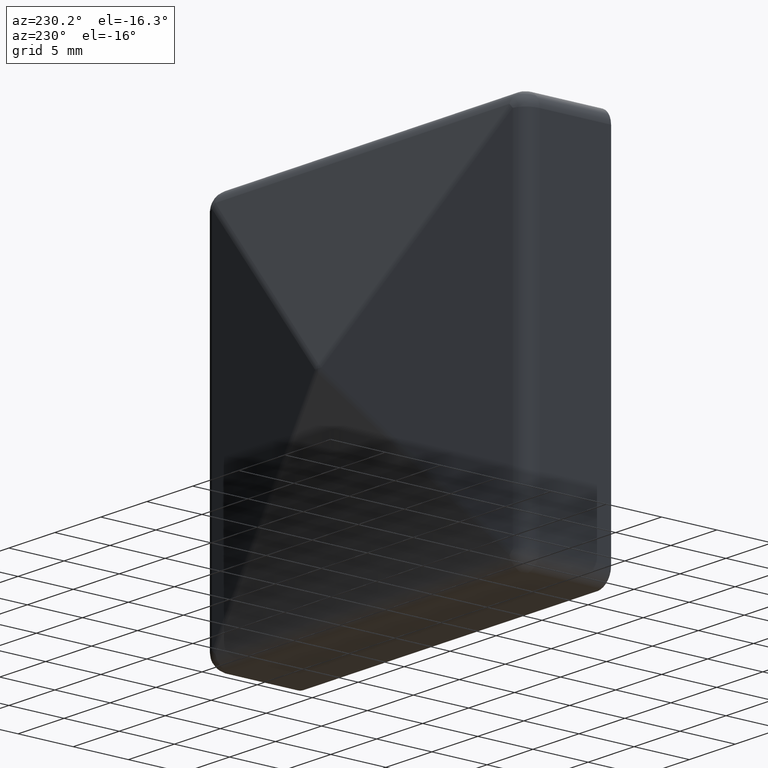
[diagram: clean part render]
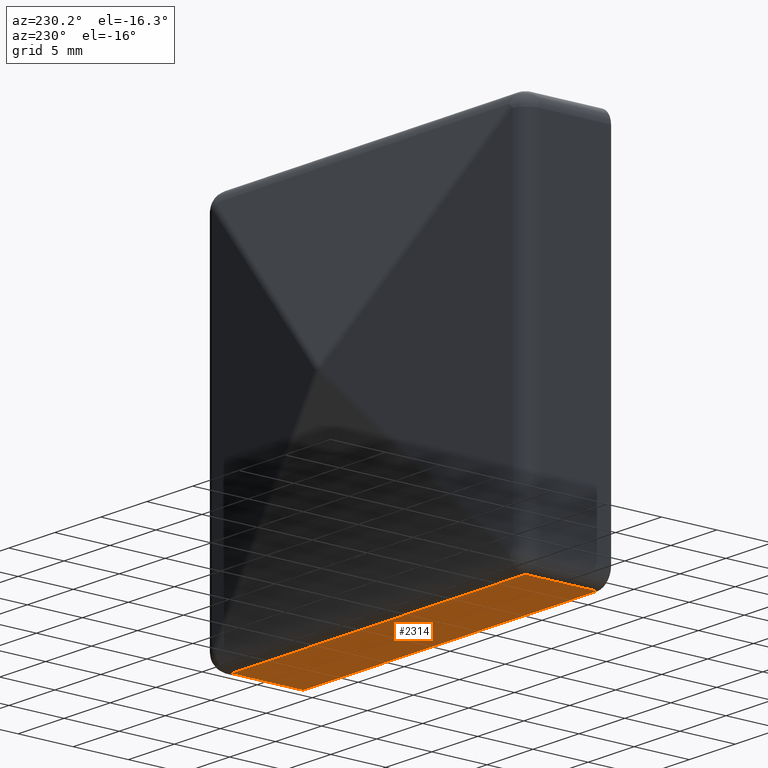
[diagram: same view with one face highlighted and labeled with its STEP entity id]
A machine part, auxiliary view. The second image highlights one B-rep face of the part: STEP entity #2314.
In plain terms, the highlighted planar face has unit normal (0, 0, 1).
Its self-contained STEP definition (entity closure, byte-faithful):
#1 = VECTOR ( 'NONE', #2024, 1000.000000000000000 ) ;
#255 = ORIENTED_EDGE ( 'NONE', *, *, #9514, .T. ) ;
#292 = VECTOR ( 'NONE', #10796, 1000.000000000000000 ) ;
#748 = ORIENTED_EDGE ( 'NONE', *, *, #3244, .F. ) ;
#780 = CARTESIAN_POINT ( 'NONE',  ( -16.00000000000000000, 12.00000000000000000, -17.50000000000001400 ) ) ;
#1197 = LINE ( 'NONE', #16167, #1 ) ;
#1557 = DIRECTION ( 'NONE',  ( 0.0000000000000000000, -1.000000000000000000, 0.0000000000000000000 ) ) ;
#2024 = DIRECTION ( 'NONE',  ( -1.000000000000000000, -0.0000000000000000000, -0.0000000000000000000 ) ) ;
#2247 = CARTESIAN_POINT ( 'NONE',  ( 17.49999999999996100, 6.500000000000000000, -17.49999999999996400 ) ) ;
#2307 = LINE ( 'NONE', #780, #292 ) ;
#2314 = ADVANCED_FACE ( 'NONE', ( #3770 ), #10582, .F. ) ;
#2551 = VERTEX_POINT ( 'NONE', #14739 ) ;
#2793 = CARTESIAN_POINT ( 'NONE',  ( 15.99999999999995900, 12.00000000000000000, -17.50000000000001400 ) ) ;
#3244 = EDGE_CURVE ( 'NONE', #10932, #8326, #8030, .T. ) ;
#3325 = CARTESIAN_POINT ( 'NONE',  ( -16.00000000000000000, 6.500000000000000000, -17.49999999999995700 ) ) ;
#3770 = FACE_OUTER_BOUND ( 'NONE', #16560, .T. ) ;
#5052 = ORIENTED_EDGE ( 'NONE', *, *, #16467, .T. ) ;
#5078 = CARTESIAN_POINT ( 'NONE',  ( -16.00000000000000000, 0.0000000000000000000, -17.50000000000001400 ) ) ;
#6655 = DIRECTION ( 'NONE',  ( 1.000000000000000000, 0.0000000000000000000, -0.0000000000000000000 ) ) ;
#7211 = VECTOR ( 'NONE', #16215, 1000.000000000000000 ) ;
#8030 = LINE ( 'NONE', #2247, #7211 ) ;
#8326 = VERTEX_POINT ( 'NONE', #3325 ) ;
#9310 = EDGE_CURVE ( 'NONE', #10932, #2551, #14337, .T. ) ;
#9347 = VERTEX_POINT ( 'NONE', #5078 ) ;
#9514 = EDGE_CURVE ( 'NONE', #9347, #8326, #2307, .T. ) ;
#10416 = DIRECTION ( 'NONE',  ( 0.0000000000000000000, 0.0000000000000000000, 1.000000000000000000 ) ) ;
#10509 = VECTOR ( 'NONE', #1557, 1000.000000000000000 ) ;
#10537 = AXIS2_PLACEMENT_3D ( 'NONE', #13037, #10416, #6655 ) ;
#10582 = PLANE ( 'NONE',  #10537 ) ;
#10796 = DIRECTION ( 'NONE',  ( -0.0000000000000000000, 1.000000000000000000, -0.0000000000000000000 ) ) ;
#10932 = VERTEX_POINT ( 'NONE', #13254 ) ;
#13037 = CARTESIAN_POINT ( 'NONE',  ( -17.50000000000000000, 12.00000000000000000, -17.50000000000001400 ) ) ;
#13254 = CARTESIAN_POINT ( 'NONE',  ( 15.99999999999995900, 6.500000000000000000, -17.49999999999996400 ) ) ;
#13343 = ORIENTED_EDGE ( 'NONE', *, *, #9310, .T. ) ;
#14337 = LINE ( 'NONE', #2793, #10509 ) ;
#14739 = CARTESIAN_POINT ( 'NONE',  ( 15.99999999999995900, 0.0000000000000000000, -17.50000000000001400 ) ) ;
#16167 = CARTESIAN_POINT ( 'NONE',  ( -17.50000000000000000, 0.0000000000000000000, -17.50000000000001400 ) ) ;
#16215 = DIRECTION ( 'NONE',  ( -1.000000000000000000, -0.0000000000000000000, 2.220446049250313100E-016 ) ) ;
#16467 = EDGE_CURVE ( 'NONE', #2551, #9347, #1197, .T. ) ;
#16560 = EDGE_LOOP ( 'NONE', ( #748, #13343, #5052, #255 ) ) ;